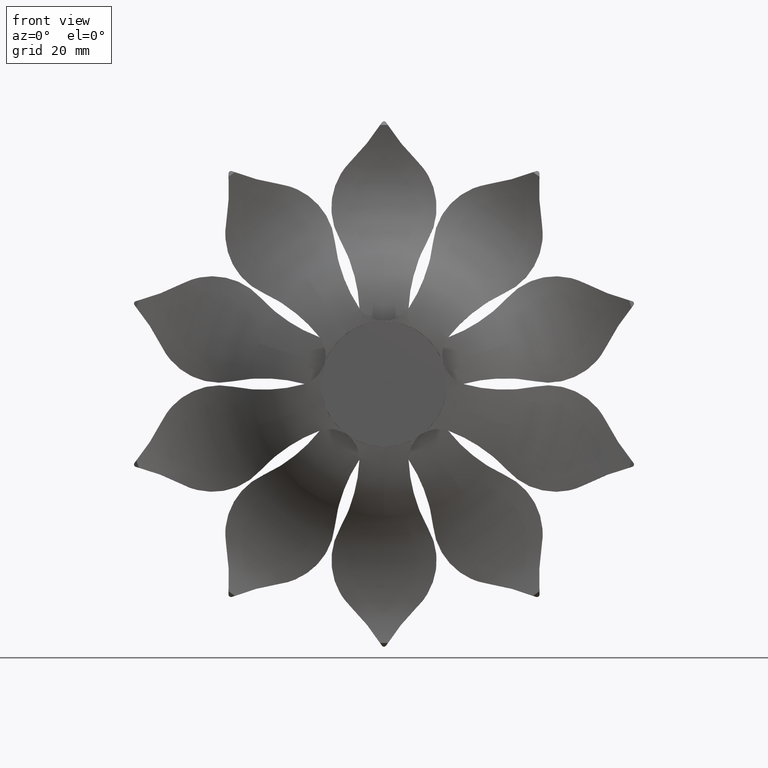
[diagram: clean part render]
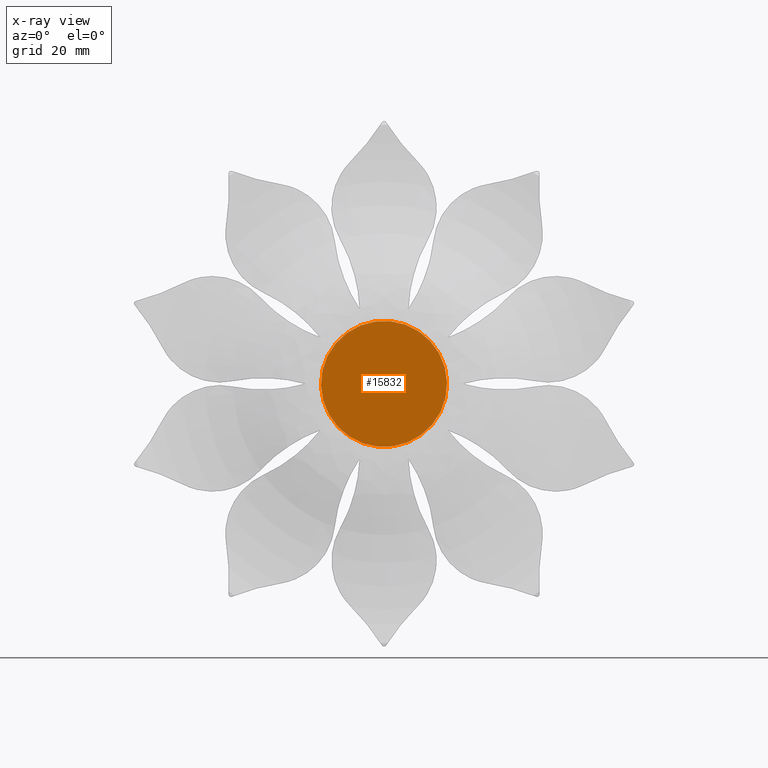
[diagram: x-ray — body ghosted, one internal face saturated and labeled with its STEP entity id]
A machine part, front view, then the same camera in x-ray: the body is ghosted and one INTERNAL B-rep face — a face not visible from any outside direction — is saturated and labeled: STEP entity #15832.
In plain terms, the highlighted planar face has unit normal (0, -1, 0).
Its self-contained STEP definition (entity closure, byte-faithful):
#640 = AXIS2_PLACEMENT_3D ( 'NONE', #12708, #7002, #11404 ) ;
#1313 = ORIENTED_EDGE ( 'NONE', *, *, #14422, .T. ) ;
#2410 = AXIS2_PLACEMENT_3D ( 'NONE', #12466, #15452, #9315 ) ;
#3723 = CARTESIAN_POINT ( 'NONE',  ( 0.000000000000000000, 0.000000000000000000, 0.000000000000000000 ) ) ;
#3976 = CIRCLE ( 'NONE', #2410, 12.59999999999999787 ) ;
#5396 = EDGE_CURVE ( 'NONE', #10167, #9503, #3976, .T. ) ;
#5663 = CIRCLE ( 'NONE', #640, 12.59999999999999787 ) ;
#5959 = CARTESIAN_POINT ( 'NONE',  ( 1.543054966925664878E-15, 0.000000000000000000, 12.59999999999999787 ) ) ;
#7002 = DIRECTION ( 'NONE',  ( 0.000000000000000000, -1.000000000000000000, 0.000000000000000000 ) ) ;
#7197 = EDGE_LOOP ( 'NONE', ( #16491, #1313 ) ) ;
#8343 = AXIS2_PLACEMENT_3D ( 'NONE', #3723, #18781, #8415 ) ;
#8415 = DIRECTION ( 'NONE',  ( 0.000000000000000000, -0.000000000000000000, -1.000000000000000000 ) ) ;
#9315 = DIRECTION ( 'NONE',  ( 0.000000000000000000, 0.000000000000000000, -1.000000000000000000 ) ) ;
#9503 = VERTEX_POINT ( 'NONE', #5959 ) ;
#10167 = VERTEX_POINT ( 'NONE', #17762 ) ;
#10590 = FACE_OUTER_BOUND ( 'NONE', #7197, .T. ) ;
#11404 = DIRECTION ( 'NONE',  ( 0.000000000000000000, 0.000000000000000000, -1.000000000000000000 ) ) ;
#12466 = CARTESIAN_POINT ( 'NONE',  ( 0.000000000000000000, 0.000000000000000000, 0.000000000000000000 ) ) ;
#12708 = CARTESIAN_POINT ( 'NONE',  ( 0.000000000000000000, 0.000000000000000000, 0.000000000000000000 ) ) ;
#14298 = PLANE ( 'NONE',  #8343 ) ;
#14422 = EDGE_CURVE ( 'NONE', #9503, #10167, #5663, .T. ) ;
#15452 = DIRECTION ( 'NONE',  ( 0.000000000000000000, -1.000000000000000000, 0.000000000000000000 ) ) ;
#15832 = ADVANCED_FACE ( 'NONE', ( #10590 ), #14298, .T. ) ;
#16491 = ORIENTED_EDGE ( 'NONE', *, *, #5396, .T. ) ;
#17762 = CARTESIAN_POINT ( 'NONE',  ( 0.000000000000000000, 0.000000000000000000, -12.59999999999999787 ) ) ;
#18781 = DIRECTION ( 'NONE',  ( 0.000000000000000000, -1.000000000000000000, 0.000000000000000000 ) ) ;